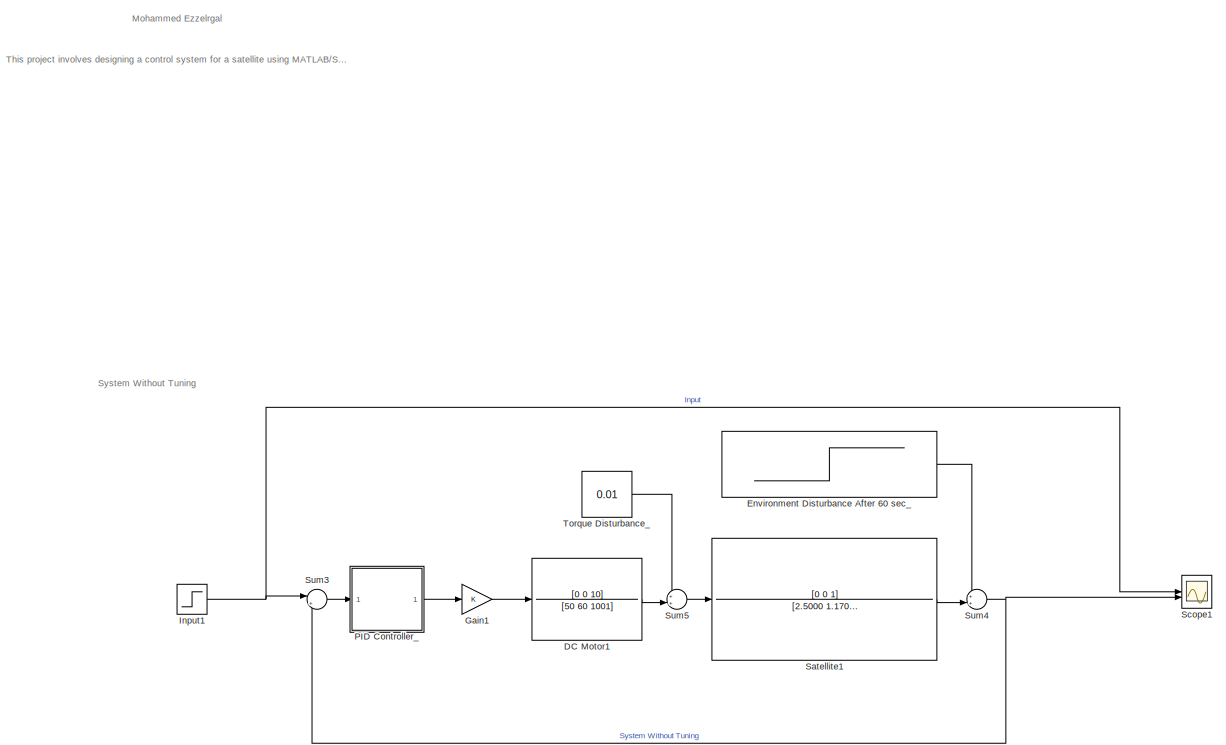
[diagram: root canvas - part 1/2, full width, top band]
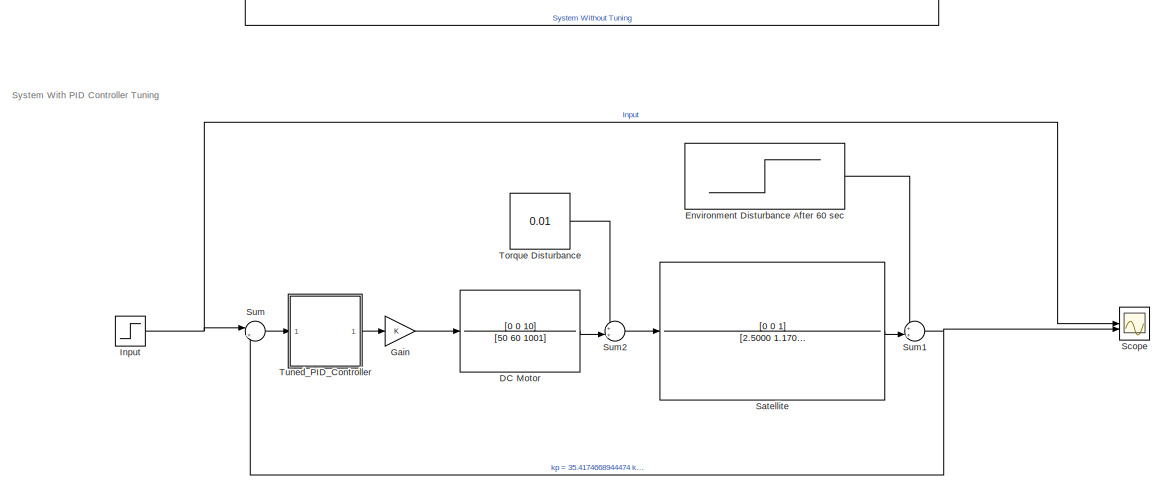
[diagram: root canvas - part 2/2, full width, bottom band]
MODEL slx_83af2f311f7f
KIND model
CONFIG AbsTol = auto
CONFIG EnableMultiTasking = off
CONFIG FixedStep = 0.001
CONFIG MaxStep = 0.001
CONFIG MinStep = auto
CONFIG RelTol = 1e-3
CONFIG SampleTimeConstraint = Unconstrained
CONFIG SolverName = VariableStepAuto
CONFIG StartTime = 0.0
CONFIG StopTime = 300
BLOCK [TransferFcn] DC Motor
  Denominator = [50 60 1001]
  Numerator = [0 0 10]
BLOCK [TransferFcn] DC Motor1
  Denominator = [50 60 1001]
  Numerator = [0 0 10]
BLOCK [Step] Environment Disturbance After 60 sec
  After = -0.4
  SampleTime = 0
  Time = 60
BLOCK [Step] Environment Disturbance After 60 sec_
  After = -0.4
  SampleTime = 0
  Time = 60
BLOCK [Gain] Gain
BLOCK [Gain] Gain1
BLOCK [Step] Input
  SampleTime = 0
BLOCK [Step] Input1
  SampleTime = 0
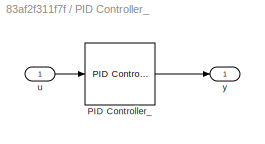
BLOCK [SubSystem] PID Controller_
BLOCK [Reference] PID Controller_/PID Controller_  REF=slpidlib/PID Controller
  LibrarySourceBlock = simulink/Continuous/PID Controller
  SourceBlock = slpidlib/PID Controller
  SourceType = PID 1dof
BLOCK [Inport] PID Controller_/u
BLOCK [Outport] PID Controller_/y
BLOCK [TransferFcn] Satellite
  Denominator = [2.5000 1.1700 0]
  Numerator = [0 0 1]
BLOCK [TransferFcn] Satellite1
  Denominator = [2.5000 1.1700 0]
  Numerator = [0 0 1]
BLOCK [Scope] Scope
  Floating = off
  NumInputPorts = 2
  ScopeSpecificationString = Simulink.scopes.TimeScopeBlockCfg('CurrentConfiguration', extmgr.ConfigurationSet(extmgr.Configuration('Core','General UI',true),extmgr.Configuration('Core','Source UI',true),extmgr.Configuration('Sources','WiredSimulink',true),extmgr.Configuration('Visuals','Time Domain',true,'SerializedDisplays',{struct('MinYLimReal','-0.13967','MaxYLimReal','1.25707','YLabelReal','','MinYLimMag','0.00000','MaxY...<+1418ch>
BLOCK [Scope] Scope1
  Floating = off
  NumInputPorts = 2
  ScopeSpecificationString = Simulink.scopes.TimeScopeBlockCfg('CurrentConfiguration', extmgr.ConfigurationSet(extmgr.Configuration('Core','General UI',true),extmgr.Configuration('Core','Source UI',true),extmgr.Configuration('Sources','WiredSimulink',true,'DataLoggingVariableName','ScopeData1'),extmgr.Configuration('Visuals','Time Domain',true,'SerializedDisplays',{struct('MinYLimReal','-4.59623','MaxYLimReal','5.90023','YLab...<+1442ch>
BLOCK [Sum] Sum
  Inputs = |+-
BLOCK [Sum] Sum1
  Inputs = ++|
BLOCK [Sum] Sum2
  Inputs = ++|
BLOCK [Sum] Sum3
  Inputs = |+-
BLOCK [Sum] Sum4
  Inputs = ++|
BLOCK [Sum] Sum5
  Inputs = ++|
BLOCK [Constant] Torque Disturbance
  Value = 0.01
BLOCK [Constant] Torque Disturbance_
  Value = 0.01
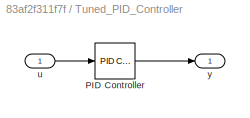
BLOCK [SubSystem] Tuned_PID_Controller
BLOCK [Reference] Tuned_PID_Controller/PID Controller  REF=slpidlib/PID Controller
  LibrarySourceBlock = simulink/Continuous/PID Controller
  SourceBlock = slpidlib/PID Controller
  SourceType = PID 1dof
BLOCK [Inport] Tuned_PID_Controller/u
BLOCK [Outport] Tuned_PID_Controller/y
ANNOTATION (root): Mohammed Ezzelrgal
ANNOTATION (root): This project involves designing a control system for a satellite using MATLAB/Simulink. It includes modeling two main systems: a DC motor and the satellite itself. The project focuses on analyzing system dynamics, designing PID controllers, and evaluating system performance through simulations. The goal is to ensure the stability and reliability of the satellite in various operating conditions.
ANNOTATION (root): System With PID Controller Tuning
ANNOTATION (root): System Without Tuning
LINE DC Motor1:1 -> Sum5:2
LINE DC Motor:1 -> Sum2:2
LINE Environment Disturbance After 60 sec:1 -> Sum1:1
LINE Environment Disturbance After 60 sec_:1 -> Sum4:1
LINE Gain1:1 -> DC Motor1:1
LINE Gain:1 -> DC Motor:1
NET Input1:1 -> Scope1:1, Sum3:1
NET Input:1 -> Scope:1, Sum:1
LINE PID Controller_/PID Controller_:1 -> PID Controller_/y:1
LINE PID Controller_/u:1 -> PID Controller_/PID Controller_:1
LINE PID Controller_:1 -> Gain1:1
LINE Satellite1:1 -> Sum4:2
LINE Satellite:1 -> Sum1:2
NET Sum1:1 -> Scope:2, Sum:2
LINE Sum2:1 -> Satellite:1
LINE Sum3:1 -> PID Controller_:1
NET Sum4:1 -> Scope1:2, Sum3:2
LINE Sum5:1 -> Satellite1:1
LINE Sum:1 -> Tuned_PID_Controller:1
LINE Torque Disturbance:1 -> Sum2:1
LINE Torque Disturbance_:1 -> Sum5:1
LINE Tuned_PID_Controller/PID Controller:1 -> Tuned_PID_Controller/y:1
LINE Tuned_PID_Controller/u:1 -> Tuned_PID_Controller/PID Controller:1
LINE Tuned_PID_Controller:1 -> Gain:1
note: NET lines group one-source signal fan-out (src -> all destinations, sorted); 1:1 wires keep LINE
